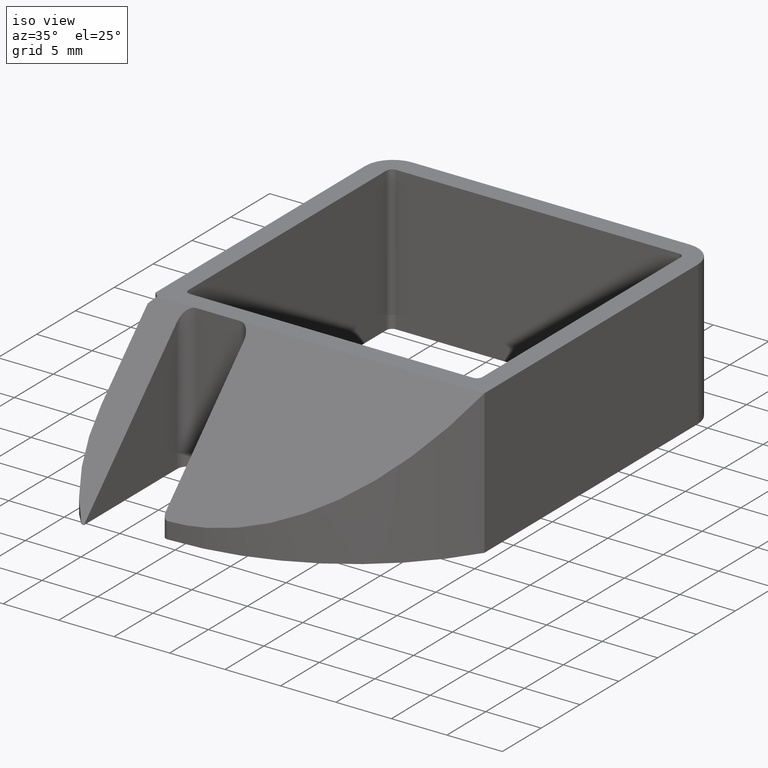
[diagram: clean part render]
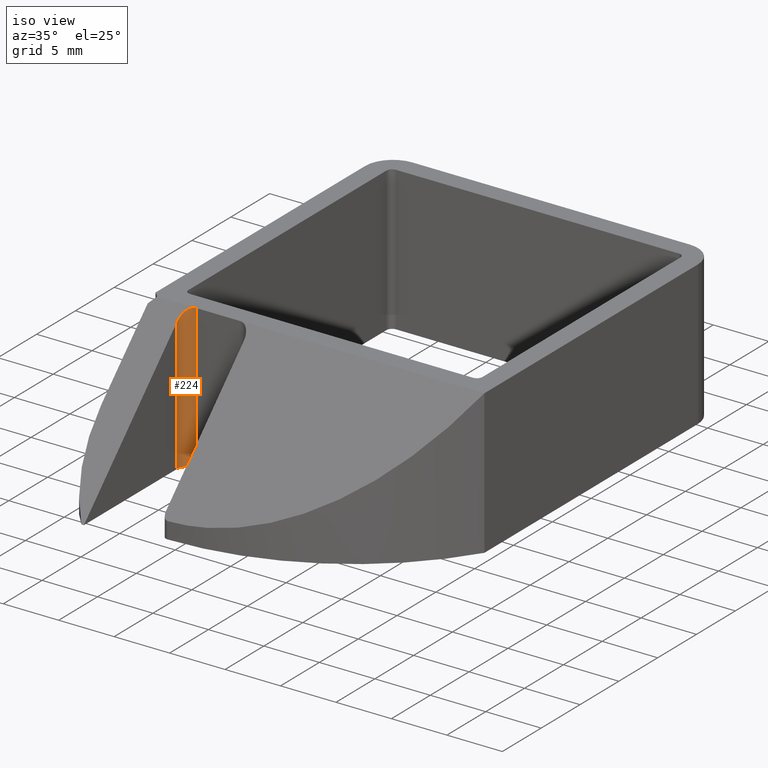
[diagram: same view with one face highlighted and labeled with its STEP entity id]
A machine part, iso view. The second image highlights one B-rep face of the part: STEP entity #224.
In plain terms, the highlighted cylindrical surface (edge-blend (fillet) strip) has radius 1 mm, axis along (-0, 0, -1).
Its self-contained STEP definition (entity closure, byte-faithful):
#167=CARTESIAN_POINT('',(-26.999999999963848,-14.749999999974081,0.0));
#168=VERTEX_POINT('',#167);
#175=CARTESIAN_POINT('',(-26.999999999963848,-14.749999999974081,12.000000000025807));
#176=VERTEX_POINT('',#175);
#177=CARTESIAN_POINT('',(-26.999999999963848,-14.749999999974081,0.0));
#178=DIRECTION('',(0.0,0.0,1.0));
#179=VECTOR('',#178,12.000000000025738);
#180=LINE('',#177,#179);
#181=EDGE_CURVE('',#168,#176,#180,.T.);
#192=CARTESIAN_POINT('',(-25.999999999963848,-14.749999999974078,0.0));
#193=DIRECTION('',(-1.499760E-032,1.224647E-016,-1.0));
#194=DIRECTION('',(-1.0,-6.123234E-017,2.465190E-032));
#195=AXIS2_PLACEMENT_3D('',#192,#193,#194);
#196=CYLINDRICAL_SURFACE('',#195,1.0);
#197=CARTESIAN_POINT('',(-25.999999999963848,-13.749999999974078,0.0));
#198=VERTEX_POINT('',#197);
#199=CARTESIAN_POINT('',(-25.999999999963848,-14.749999999974078,0.0));
#200=DIRECTION('',(-1.499760E-032,1.224647E-016,-1.0));
#201=DIRECTION('',(-1.224647E-016,1.0,1.224647E-016));
#202=AXIS2_PLACEMENT_3D('',#199,#200,#201);
#203=CIRCLE('',#202,1.0);
#204=EDGE_CURVE('',#168,#198,#203,.T.);
#205=ORIENTED_EDGE('',*,*,#204,.T.);
#206=CARTESIAN_POINT('',(-25.999999999963848,-13.749999999974078,12.999999999999773));
#207=VERTEX_POINT('',#206);
#208=CARTESIAN_POINT('',(-25.999999999963848,-13.749999999974078,0.0));
#209=DIRECTION('',(0.0,0.0,1.0));
#210=VECTOR('',#209,12.999999999999773);
#211=LINE('',#208,#210);
#212=EDGE_CURVE('',#198,#207,#211,.T.);
#213=ORIENTED_EDGE('',*,*,#212,.T.);
#214=CARTESIAN_POINT('',(-25.999999999963851,-14.749999999974079,12.000000000025807));
#215=DIRECTION('',(8.659561E-017,-0.707106781186541,0.707106781186554));
#216=DIRECTION('',(-8.659561E-017,0.707106781186554,0.707106781186541));
#217=AXIS2_PLACEMENT_3D('',#214,#215,#216);
#218=ELLIPSE('',#217,1.414213562373083,1.0);
#219=EDGE_CURVE('',#207,#176,#218,.T.);
#220=ORIENTED_EDGE('',*,*,#219,.T.);
#221=ORIENTED_EDGE('',*,*,#181,.F.);
#222=EDGE_LOOP('',(#205,#213,#220,#221));
#223=FACE_OUTER_BOUND('',#222,.T.);
#224=ADVANCED_FACE('',(#223),#196,.F.);